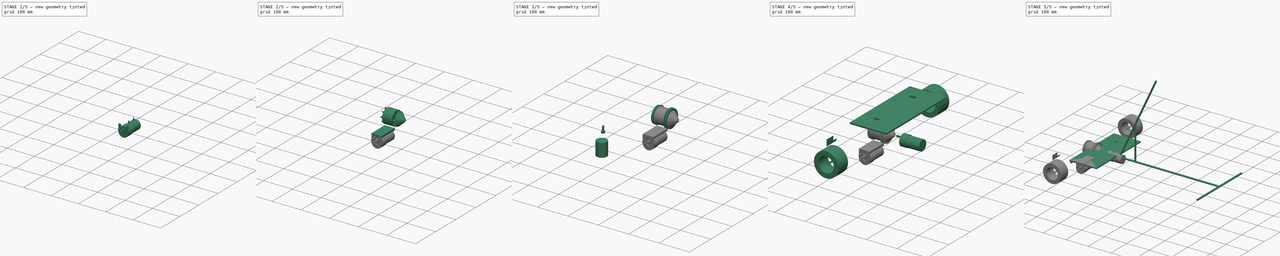
[diagram: build sequence overview — one tinted view per stage of 5, left to right]
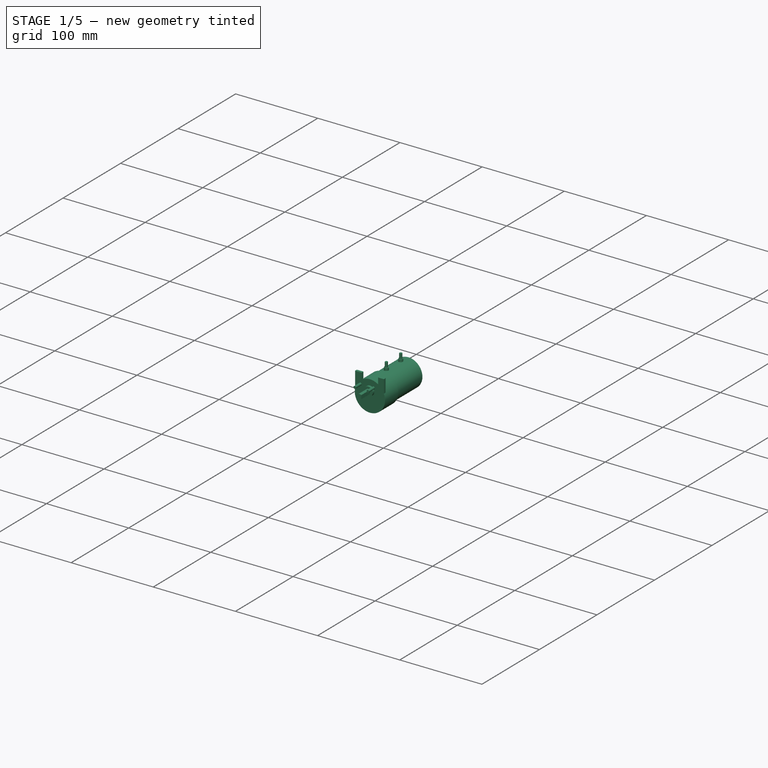
[diagram: stage 1 of 5 — iso view after this stage's code; geometry added in this stage tinted green]
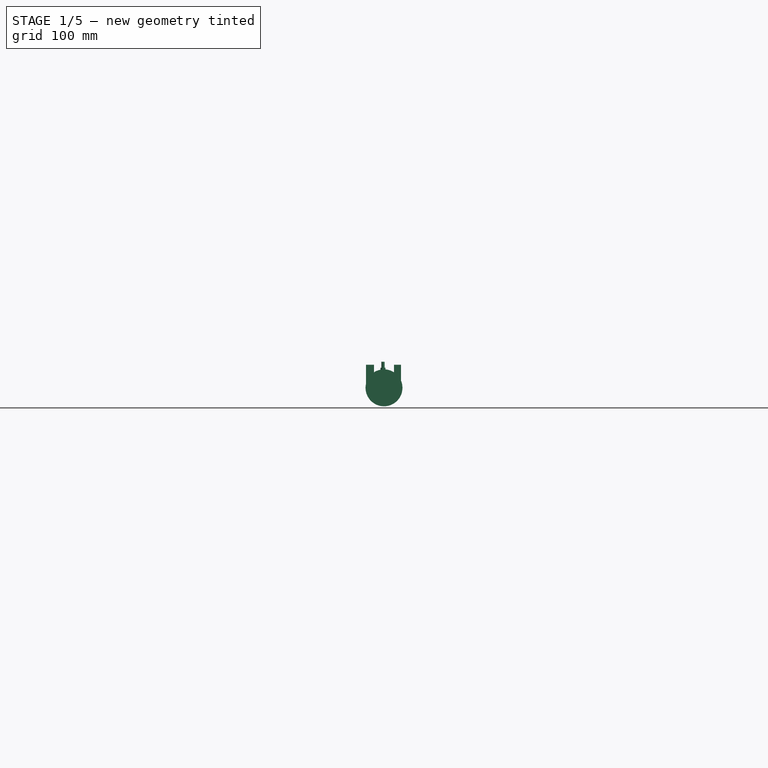
[diagram: stage 1 of 5 — front view after this stage's code; geometry added in this stage tinted green]
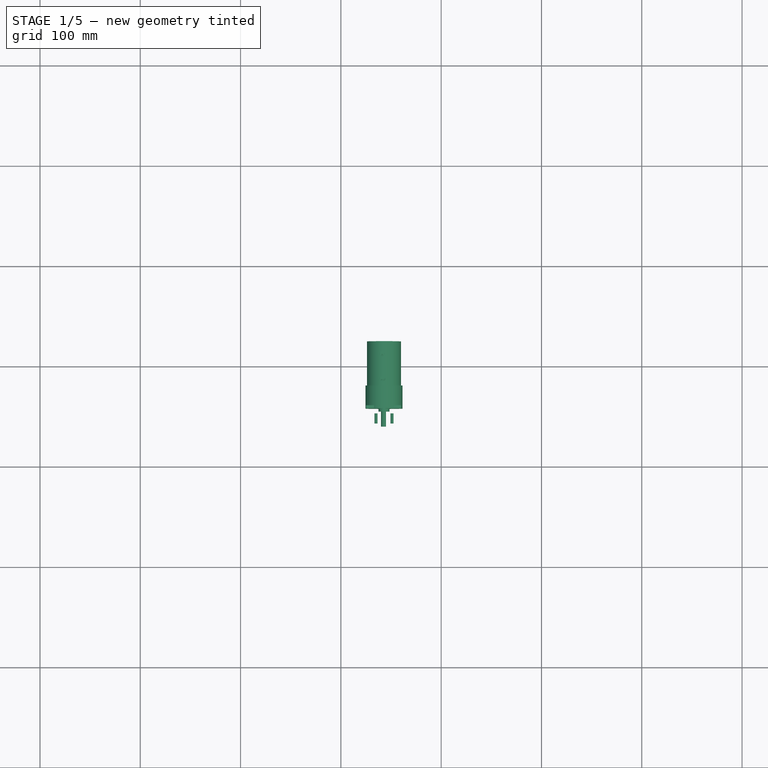
[diagram: stage 1 of 5 — top view after this stage's code; geometry added in this stage tinted green]
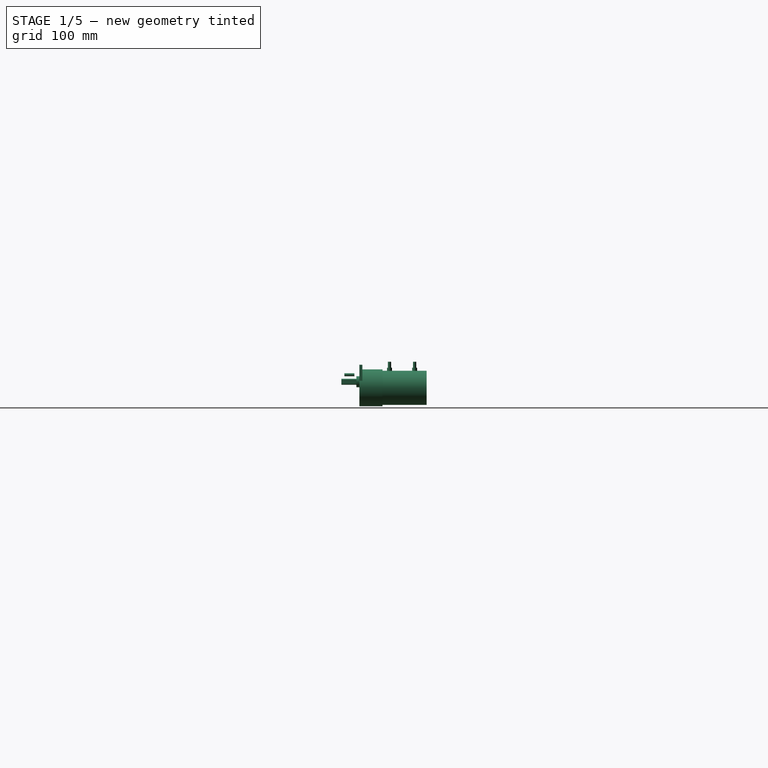
[diagram: stage 1 of 5 — right view after this stage's code; geometry added in this stage tinted green]
FCSTD DOCUMENT  (FreeCAD 0.16R6712 (Git))
Label: Rin-Exo
License: All rights reserved
LicenseURL: http://en.wikipedia.org/wiki/All_rights_reserved
objects: Part::Cylinder×45, Part::Box×16, Part::Cut×16, Part::MultiFuse×11, Sketcher::SketchObject×2, Part::Cone×1
note: 91 computed .brp shape members not serialized (recipe doc carries the construction recipe); baked Part::Feature solids carry a one-line shape summary decoded from their .brp

FEATURE [Part::Cylinder] Cylinder012  label="Caja Reductora001"
  Angle = 360
  Height = 20
  Placement = pos=(0,-298,44) rot=(0,0,1;0rad)
  Radius = 18.4
FEATURE [Part::Cylinder] Cylinder013  label="Motor001"
  Angle = 360
  Height = 30
  Placement = pos=(0,-298,14) rot=(0,0,1;0rad)
  Radius = 17
FEATURE [Part::Cylinder] Cylinder014  label="Encoder001"
  Angle = 360
  Height = 14
  Placement = pos=(0,-298,0) rot=(0,0,1;0rad)
  Radius = 17
FEATURE [Part::Cylinder] Cylinder015  label="Cilindro002"
  Angle = 360
  Height = 6
  Placement = pos=(0,-292,64) rot=(0,0,1;0rad)
  Radius = 5.5
FEATURE [Part::Cylinder] Cylinder016  label="Cilindro003"
  Angle = 360
  Height = 15
  Placement = pos=(0,-186,0) rot=(0,0,1;0rad)
  Radius = 3
FEATURE [Part::Box] Box002  label="Cubo001"
  Height = 21
  Length = 11
  Placement = pos=(2,-191,-2) rot=(0,0,1;0rad)
  Width = 10
FEATURE [Part::Cut] Cut001
  Base = -> Cylinder016
  Placement = pos=(0,-106,70) rot=(0,0,1;0rad)
  Tool = -> Box002
FEATURE [Part::MultiFuse] Fusion002  label="Motor 37Dx68L001 Derecha"
  Placement = pos=(43,-75,283) rot=(1,0,0;1.5708rad)
  Shapes = -> [Cylinder012,Cylinder014,Cylinder015,Cylinder013,Cut001]
FEATURE [Part::Cylinder] Cylinder042  label="Cilindro020"
  Angle = 360
  Height = 3
  Placement = pos=(43,-139,-15) rot=(1,0,0;1.5708rad)
  Radius = 18.4
FEATURE [Part::Cylinder] Cylinder043  label="Cilindro021"
  Angle = 360
  Height = 3
  Placement = pos=(43,-139,-12) rot=(1,0,0;1.5708rad)
  Radius = 8.8
FEATURE [Part::Box] Box015  label="Cubo013"
  Height = 23
  Length = 8
  Placement = pos=(25,-142,-15) rot=(0,0,1;0rad)
  Width = 3
FEATURE [Part::Box] Box016  label="Cubo014"
  Height = 23
  Length = 7
  Placement = pos=(53,-142,-15) rot=(0,0,1;0rad)
  Width = 3
FEATURE [Part::Cylinder] Cylinder044  label="Cilindro022"
  Angle = 360
  Height = 10
  Placement = pos=(42,-112,1) rot=(0,0,1;0rad)
  Radius = 1.6
FEATURE [Part::Cylinder] Cylinder045  label="Cilindro023"
  Angle = 360
  Height = 10
  Placement = pos=(42,-87,1) rot=(0,0,1;0rad)
  Radius = 1.6
FEATURE [Part::Cylinder] Cylinder046  label="Cilindro024"
  Angle = 360
  Height = 10
  Placement = pos=(42,-87,-5) rot=(0,0,1;0rad)
  Radius = 2.5
FEATURE [Part::Cylinder] Cylinder047  label="Cilindro025"
  Angle = 360
  Height = 10
  Placement = pos=(42,-112,-5) rot=(0,0,1;0rad)
  Radius = 2.5
FEATURE [Part::Cylinder] Cylinder048  label="Cilindro026"
  Angle = 360
  Height = 10
  Placement = pos=(35,-147,-2) rot=(1,0,0;1.5708rad)
  Radius = 1.5
FEATURE [Part::Cylinder] Cylinder049  label="Cilindro027"
  Angle = 360
  Height = 10
  Placement = pos=(51,-147,-2) rot=(1,0,0;1.5708rad)
  Radius = 1.5
FEATURE [Sketcher::SketchObject] Sketch001
  Placement = pos=(43,-139,283) rot=(1,0,0;1.5708rad)
  Support = -> Fusion002 [Face2]
FEATURE [Sketcher::SketchObject] Sketch
  Placement = pos=(43,-139,283) rot=(1,0,0;1.5708rad)
  Support = -> Fusion002 [Face2]
  sketch-geometry (5):
    g0: Circle [constr] CenterX=-0.070379 CenterY=-297.992 CenterZ=0 NormalX=0 NormalY=0 NormalZ=1 Radius=18.4
    g1: LineSegment [constr] StartX=-18.4704 StartY=-297.992 StartZ=0 EndX=18.3296 EndY=-297.992 EndZ=0
    g2: LineSegment [constr] StartX=-0.070379 StartY=-297.992 StartZ=0 EndX=-0.070379 EndY=-279.592 EndZ=0
    g3: LineSegment [constr] StartX=-7.89834 StartY=-285.2 StartZ=0 EndX=7.99711 EndY=-285.2 EndZ=0
    g4: LineSegment [constr] StartX=-7.67633 StartY=-284.299 StartZ=0 EndX=7.82367 EndY=-284.299 EndZ=0
  constraints (13):
    c: Radius(g0) = 18.4
    c: PointOnObject(g1,g0)
    c: PointOnObject(g1,g0)
    c: Horizontal(g1)
    c: Coincident(g2,g0)
    c: PointOnObject(g2,g0)
    c: Symmetric(g1,g1,g2)
    c: DistanceY(g0,g-1) = 297.992
    c: PointOnObject(g0,g1)
    c: DistanceX(g0,g-1) = 0.070379
    c: Horizontal(g3)
    c: Horizontal(g4)
    c: DistanceX(g4,g4) = 15.5
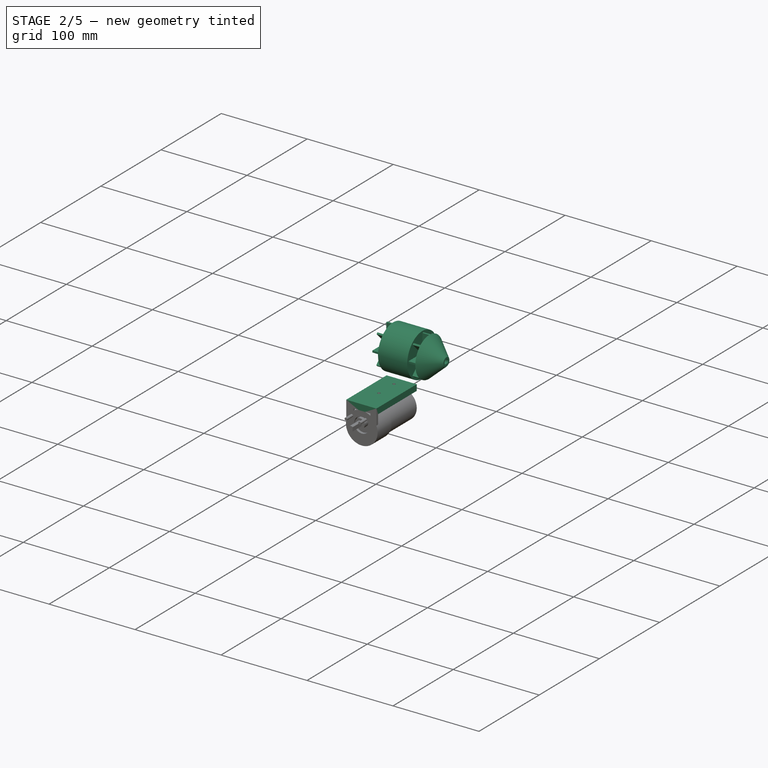
[diagram: stage 2 of 5 — iso view after this stage's code; geometry added in this stage tinted green]
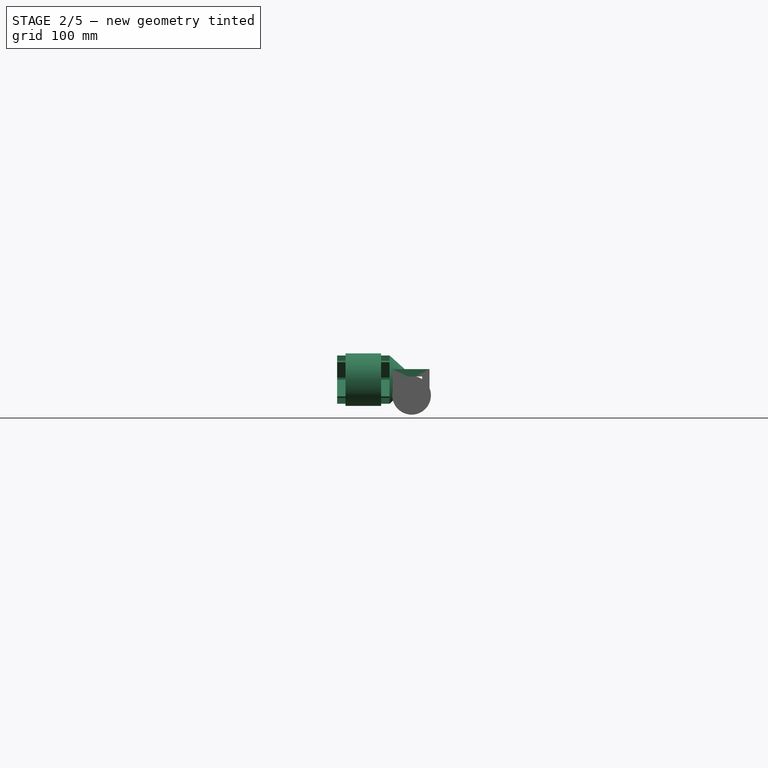
[diagram: stage 2 of 5 — front view after this stage's code; geometry added in this stage tinted green]
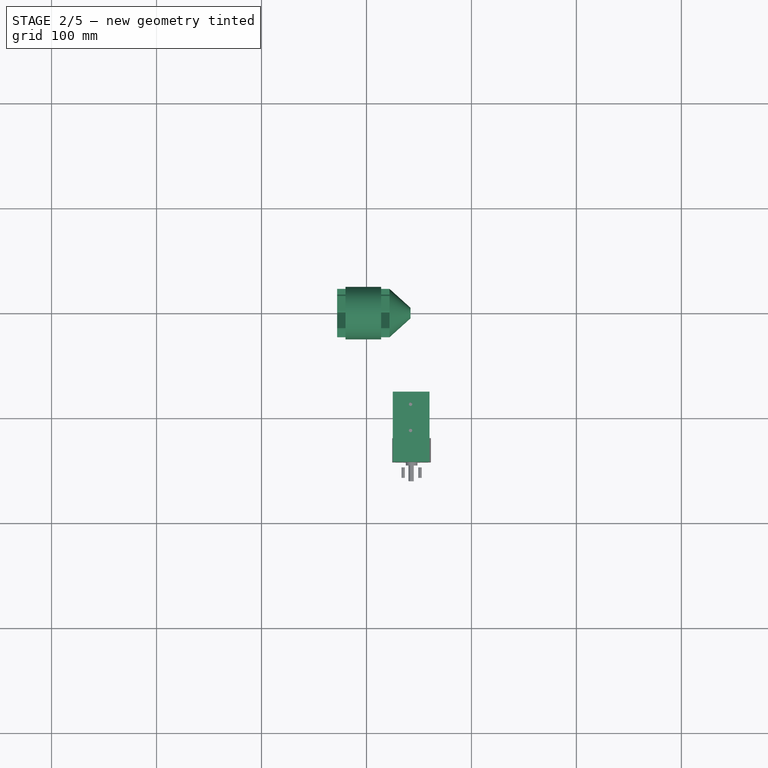
[diagram: stage 2 of 5 — top view after this stage's code; geometry added in this stage tinted green]
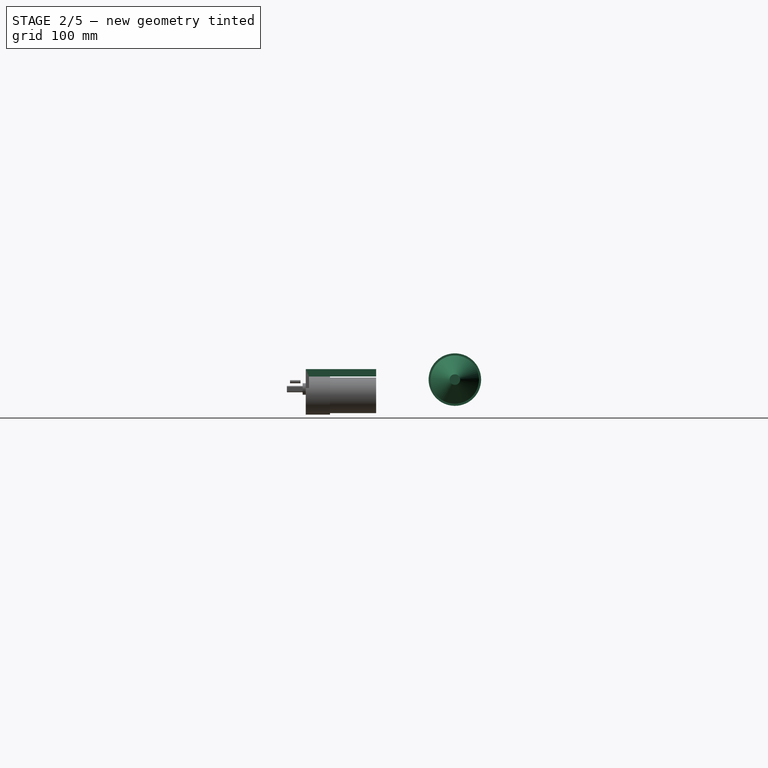
[diagram: stage 2 of 5 — right view after this stage's code; geometry added in this stage tinted green]
FEATURE [Part::Cylinder] Cylinder039  label="Centro"
  Angle = 360
  Height = 34
  Placement = pos=(-20,0,0) rot=(0,1,0;1.5708rad)
  Radius = 25
FEATURE [Part::Cone] Cone  label="Cono"
  Angle = 360
  Height = 20
  Placement = pos=(100,0,0) rot=(0,-1,0;1.5708rad)
  Radius1 = 5
  Radius2 = 23
FEATURE [Part::Cylinder] Cylinder041  label="Cilindro019"
  Angle = 360
  Height = 15
  Placement = pos=(0,-186,0) rot=(0,0,1;0rad)
  Radius = 3
FEATURE [Part::Box] Box009  label="Cubo007"
  Height = 21
  Length = 11
  Placement = pos=(2,-191,-2) rot=(0,0,1;0rad)
  Width = 10
FEATURE [Part::Cut] Cut009
  Base = -> Cylinder041
  Placement = pos=(86,186,0) rot=(0,1,0;1.5708rad)
  Tool = -> Box009
FEATURE [Part::Cut] Cut010  label="Cono Rin"
  Base = -> Cone
  Placement = pos=(-58,0,0) rot=(0,0,1;0rad)
  Tool = -> Cut009
FEATURE [Part::Box] Box010  label="Cubo008"
  Height = 46
  Length = 50
  Placement = pos=(-28,0,-23) rot=(0,0,1;0rad)
  Width = 2
FEATURE [Part::Box] Box011  label="Cubo009"
  Height = 46
  Length = 50
  Placement = pos=(-28,23,0) rot=(1,0,0;1.5708rad)
  Width = 2
FEATURE [Part::Box] Box012  label="Cubo010"
  Height = 46
  Length = 50
  Placement = pos=(-28,16.5,-16) rot=(1,0,0;0.785398rad)
  Width = 2
FEATURE [Part::Box] Box013  label="Cubo011"
  Height = 46
  Length = 50
  Placement = pos=(-28,-16.5,-16) rot=(-1,0,0;0.785398rad)
  Width = 2
FEATURE [Part::MultiFuse] Fusion010  label="Soporte interno"
  Shapes = -> [Box010,Box012,Box013,Box011]
FEATURE [Part::Box] Box014  label="Cubo012"
  Height = 7
  Length = 35
  Placement = pos=(25,-142,3) rot=(0,0,1;0rad)
  Width = 67
FEATURE [Part::Cut] Cut011
  Base = -> Cylinder042
  Tool = -> Cylinder043
FEATURE [Part::MultiFuse] Fusion011
  Shapes = -> [Box014,Cut011,Box015,Box016]
FEATURE [Part::Cut] Cut012
  Base = -> Fusion011
  Tool = -> Cylinder044
FEATURE [Part::Cut] Cut013
  Base = -> Cut012
  Tool = -> Cylinder045
FEATURE [Part::Cut] Cut014
  Base = -> Cut013
  Tool = -> Cylinder046
FEATURE [Part::Cut] Cut015  label="Soporte motor"
  Base = -> Cut014
  Tool = -> Cylinder047
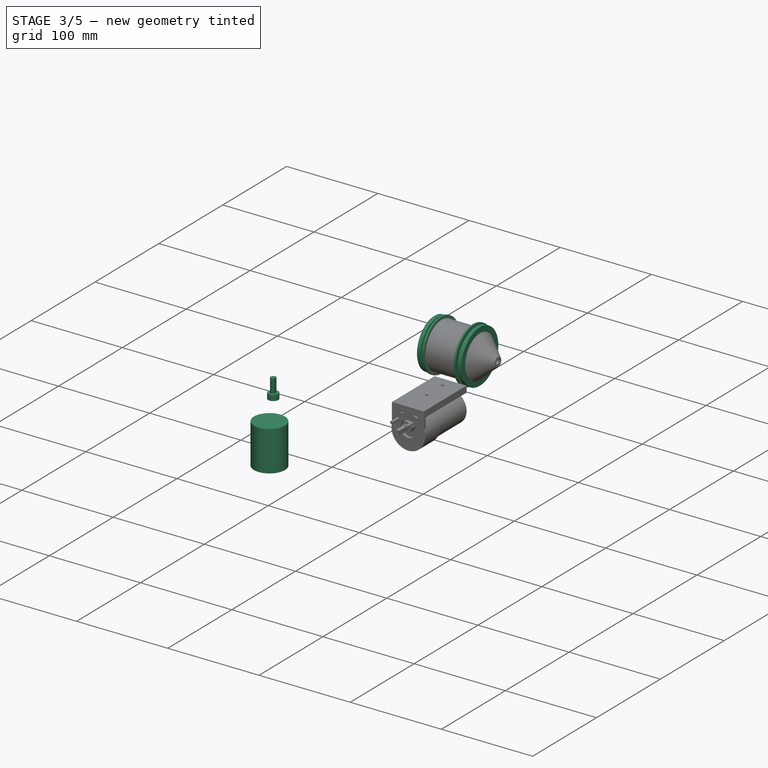
[diagram: stage 3 of 5 — iso view after this stage's code; geometry added in this stage tinted green]
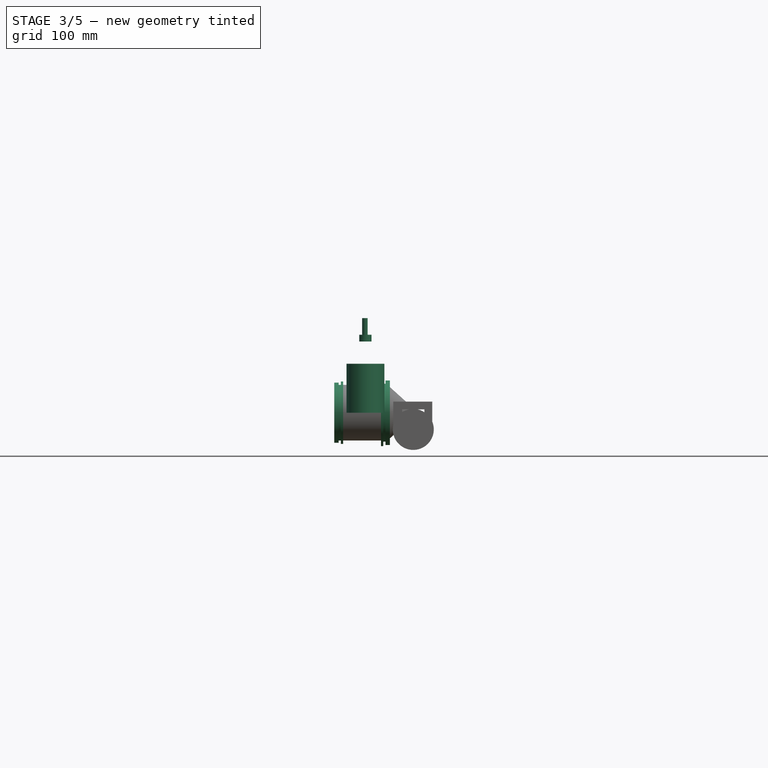
[diagram: stage 3 of 5 — front view after this stage's code; geometry added in this stage tinted green]
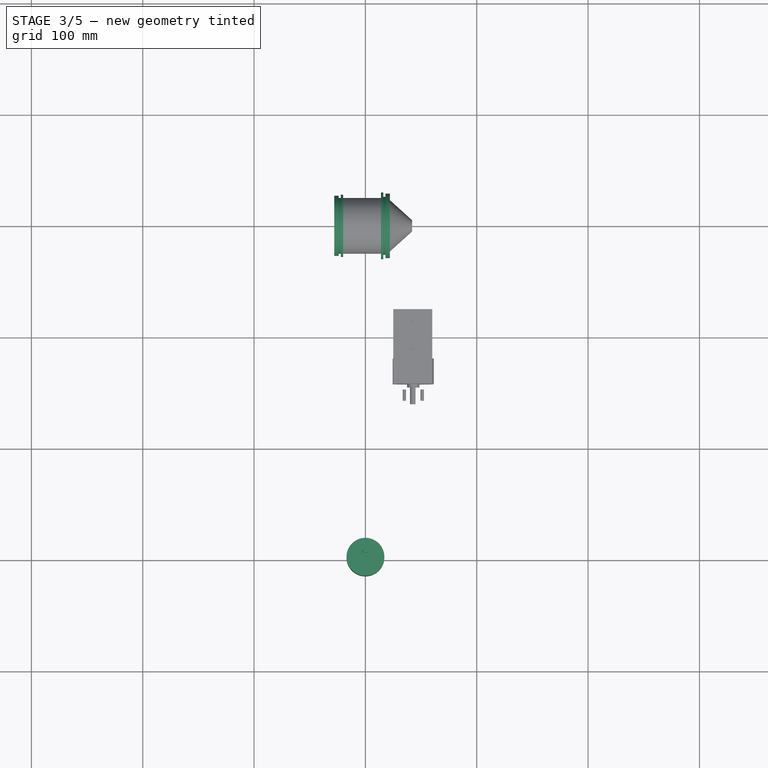
[diagram: stage 3 of 5 — top view after this stage's code; geometry added in this stage tinted green]
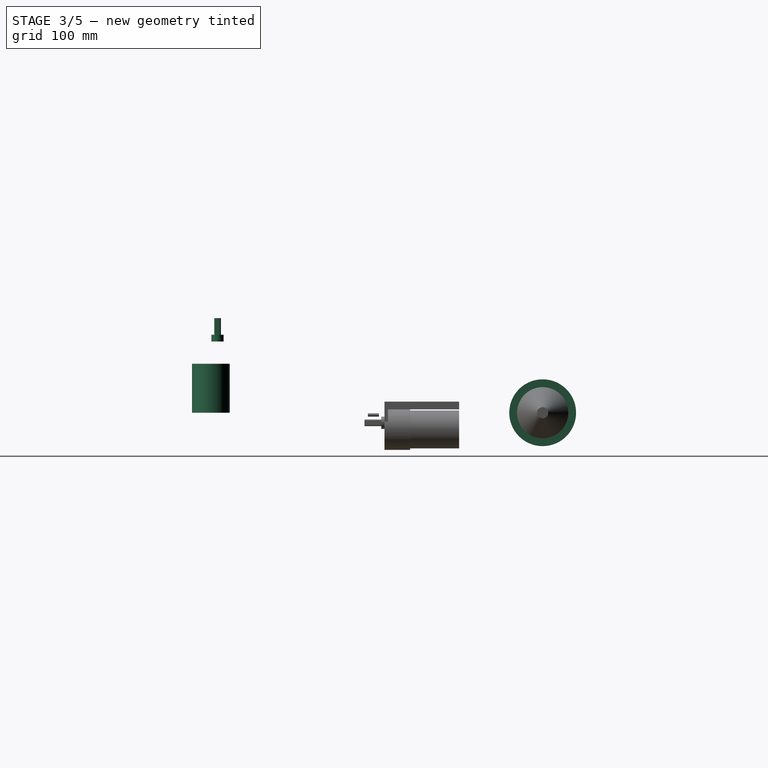
[diagram: stage 3 of 5 — right view after this stage's code; geometry added in this stage tinted green]
FEATURE [Part::Cylinder] Cylinder029  label="Motor003"
  Angle = 360
  Height = 30
  Placement = pos=(0,-298,14) rot=(0,0,1;0rad)
  Radius = 17
FEATURE [Part::Cylinder] Cylinder030  label="Encoder003"
  Angle = 360
  Height = 14
  Placement = pos=(0,-298,0) rot=(0,0,1;0rad)
  Radius = 17
FEATURE [Part::Cylinder] Cylinder031  label="Cilindro011"
  Angle = 360
  Height = 6
  Placement = pos=(0,-292,64) rot=(0,0,1;0rad)
  Radius = 5.5
FEATURE [Part::Cylinder] Cylinder032  label="Cilindro012"
  Angle = 360
  Height = 15
  Placement = pos=(0,-186,0) rot=(0,0,1;0rad)
  Radius = 3
FEATURE [Part::Box] Box008  label="Cubo006"
  Height = 21
  Length = 11
  Placement = pos=(2,-191,-2) rot=(0,0,1;0rad)
  Width = 10
FEATURE [Part::Cut] Cut007
  Base = -> Cylinder032
  Placement = pos=(0,-106,70) rot=(0,0,1;0rad)
  Tool = -> Box008
FEATURE [Part::Cylinder] Cylinder033  label="Cilindro013"
  Angle = 360
  Height = 4
  Placement = pos=(0,0,0) rot=(0,1,0;1.5708rad)
  Radius = 29
FEATURE [Part::Cylinder] Cylinder034  label="Cilindro014"
  Angle = 360
  Height = 2
  Placement = pos=(-2,0,0) rot=(0,1,0;1.5708rad)
  Radius = 26
FEATURE [Part::Cylinder] Cylinder035  label="Cilindro015"
  Angle = 360
  Height = 2
  Placement = pos=(-4,0,0) rot=(0,1,0;1.5708rad)
  Radius = 30
FEATURE [Part::MultiFuse] Fusion007  label="Riel Derecho"
  Placement = pos=(18,0,0) rot=(0,0,1;0rad)
  Shapes = -> [Cylinder033,Cylinder035,Cylinder034]
FEATURE [Part::Cylinder] Cylinder036  label="Cilindro016"
  Angle = 360
  Height = 4
  Placement = pos=(0,0,0) rot=(0,1,0;1.5708rad)
  Radius = 27
FEATURE [Part::Cylinder] Cylinder037  label="Cilindro017"
  Angle = 360
  Height = 2
  Placement = pos=(-2,0,0) rot=(0,1,0;1.5708rad)
  Radius = 25
FEATURE [Part::Cylinder] Cylinder038  label="Cilindro018"
  Angle = 360
  Height = 2
  Placement = pos=(-4,0,0) rot=(0,1,0;1.5708rad)
  Radius = 28
FEATURE [Part::MultiFuse] Fusion008  label="Riel Izquierdo"
  Placement = pos=(-24,0,0) rot=(0,1,0;3.14159rad)
  Shapes = -> [Cylinder036,Cylinder038,Cylinder037]
FEATURE [Part::Cylinder] Cylinder040  label="Corte"
  Angle = 360
  Height = 50
  Placement = pos=(-28,0,0) rot=(0,1,0;1.5708rad)
  Radius = 23
FEATURE [Part::MultiFuse] Fusion009  label="Rin Solido"
  Shapes = -> [Fusion007,Cylinder039,Fusion008]
FEATURE [Part::Cut] Cut008  label="Rin"
  Base = -> Fusion009
  Tool = -> Cylinder040
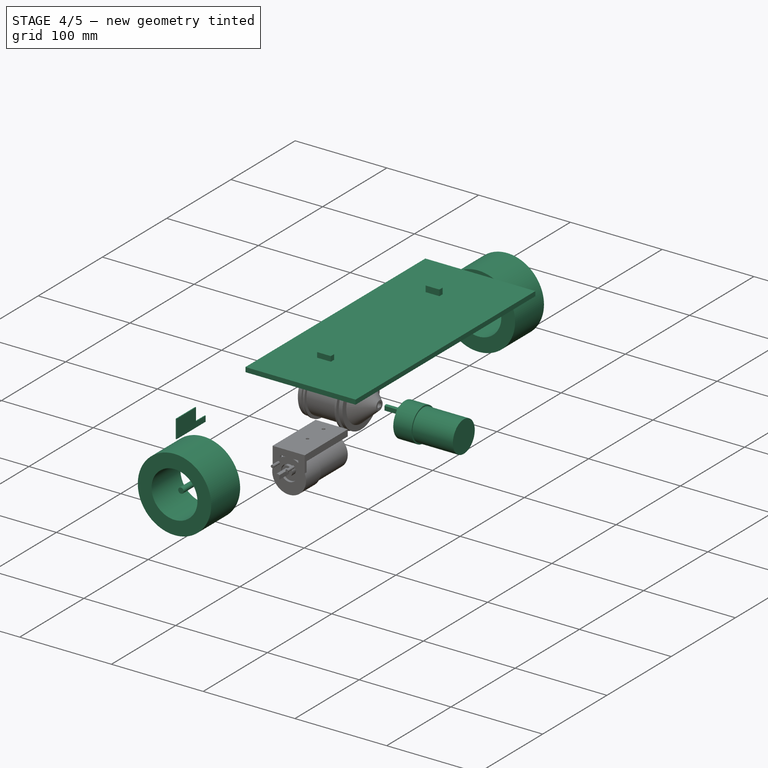
[diagram: stage 4 of 5 — iso view after this stage's code; geometry added in this stage tinted green]
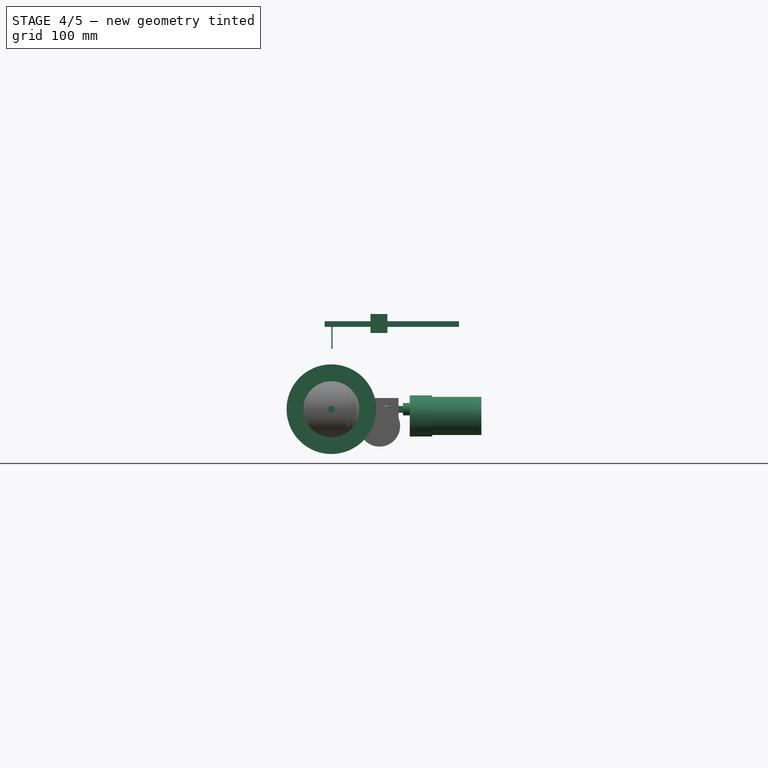
[diagram: stage 4 of 5 — front view after this stage's code; geometry added in this stage tinted green]
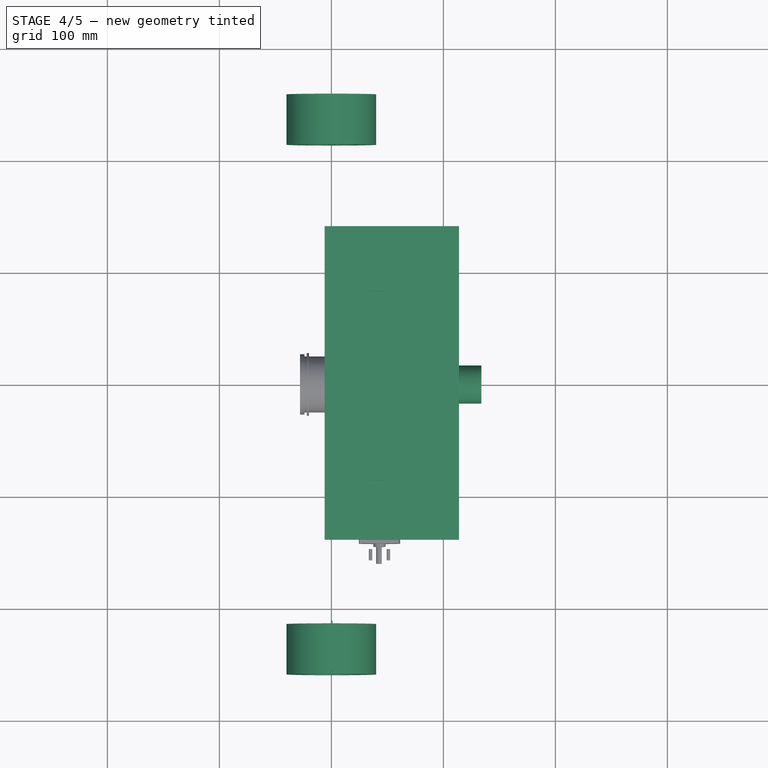
[diagram: stage 4 of 5 — top view after this stage's code; geometry added in this stage tinted green]
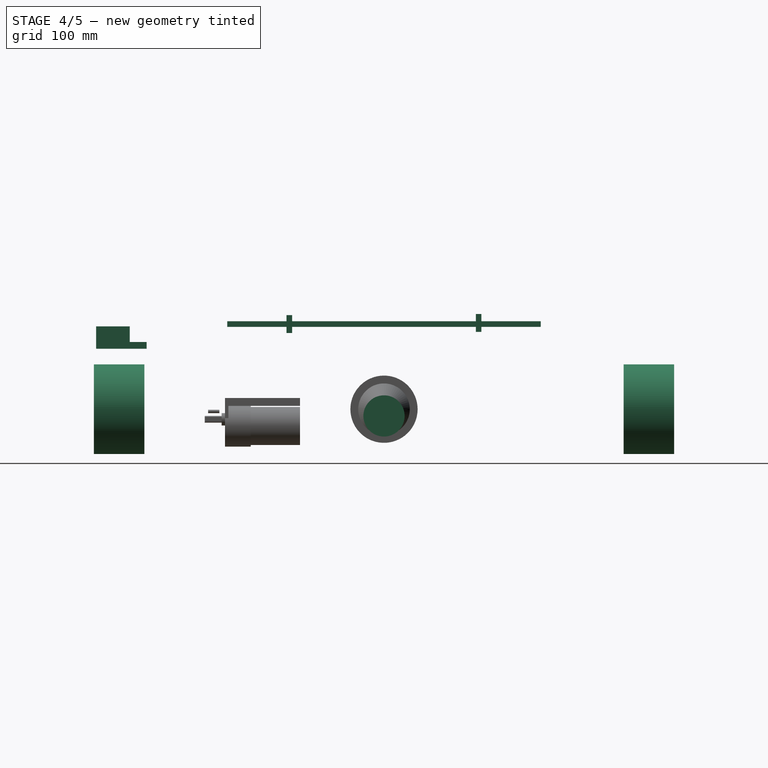
[diagram: stage 4 of 5 — right view after this stage's code; geometry added in this stage tinted green]
FEATURE [Part::Box] Box  label="Tabla"
  Height = 5
  Length = 120
  Placement = pos=(-6,-140,73.5) rot=(0,0,1;0rad)
  Width = 280
FEATURE [Part::Box] Box004  label="Cubo003"
  Height = 16
  Length = 15
  Placement = pos=(35,-87,68) rot=(0,0,1;0rad)
  Width = 5
FEATURE [Part::Box] Box005  label="Cubo004"
  Height = 16
  Length = 15
  Placement = pos=(35,82,69) rot=(0,0,1;0rad)
  Width = 5
FEATURE [Part::Cylinder] Cylinder022  label="Cilindro"
  Angle = 360
  Height = 45
  Placement = pos=(0,-214,0) rot=(1,0,0;1.5708rad)
  Radius = 40
FEATURE [Part::Cylinder] Cylinder023  label="Cilindro006"
  Angle = 360
  Height = 60
  Placement = pos=(0,-207,0) rot=(1,0,0;1.5708rad)
  Radius = 25
FEATURE [Part::Cut] Cut
  Base = -> Cylinder022
  Tool = -> Cylinder023
FEATURE [Part::Cylinder] Cylinder024  label="Cilindro007"
  Angle = 360
  Height = 35
  Placement = pos=(0,-214,0) rot=(1,0,0;1.5708rad)
  Radius = 3
FEATURE [Part::MultiFuse] Fusion004  label="Rueda Derecha"
  Shapes = -> [Cut,Cylinder024]
FEATURE [Part::Cylinder] Cylinder025  label="Cilindro008"
  Angle = 360
  Height = 45
  Placement = pos=(0,-214,0) rot=(1,0,0;1.5708rad)
  Radius = 40
FEATURE [Part::Cylinder] Cylinder026  label="Cilindro009"
  Angle = 360
  Height = 60
  Placement = pos=(0,-207,0) rot=(1,0,0;1.5708rad)
  Radius = 25
FEATURE [Part::Cut] Cut005
  Base = -> Cylinder025
  Tool = -> Cylinder026
FEATURE [Part::Cylinder] Cylinder027  label="Cilindro010"
  Angle = 360
  Height = 35
  Placement = pos=(0,-214,0) rot=(1,0,0;1.5708rad)
  Radius = 3
FEATURE [Part::MultiFuse] Fusion005  label="Rueda Izquierda"
  Placement = pos=(0,0,0) rot=(0,0,1;3.14159rad)
  Shapes = -> [Cut005,Cylinder027]
FEATURE [Part::Box] Box006  label="Cubo"
  Height = 20
  Length = 1
  Placement = pos=(0,-257,54) rot=(0,0,1;0rad)
  Width = 45
FEATURE [Part::Box] Box007  label="Cubo005"
  Height = 14
  Length = 10
  Placement = pos=(-4,-227,60) rot=(0,0,1;0rad)
  Width = 15
FEATURE [Part::Cut] Cut006
  Base = -> Box006
  Tool = -> Box007
FEATURE [Part::Cylinder] Cylinder028  label="Caja Reductora003"
  Angle = 360
  Height = 20
  Placement = pos=(0,-298,44) rot=(0,0,1;0rad)
  Radius = 18.4
FEATURE [Part::MultiFuse] Fusion006  label="Motor 37Dx68L001 Derecha001"
  Placement = pos=(134,0,292) rot=(0.57735,-0.57735,-0.57735;2.0944rad)
  Shapes = -> [Cylinder028,Cylinder030,Cylinder031,Cylinder029,Cut007]
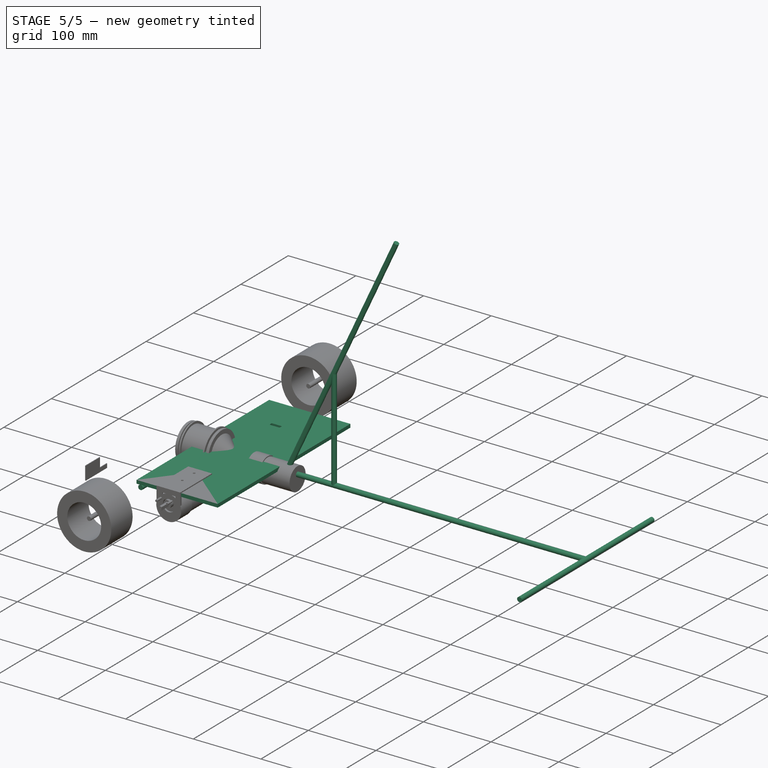
[diagram: stage 5 of 5 — iso view after this stage's code; geometry added in this stage tinted green]
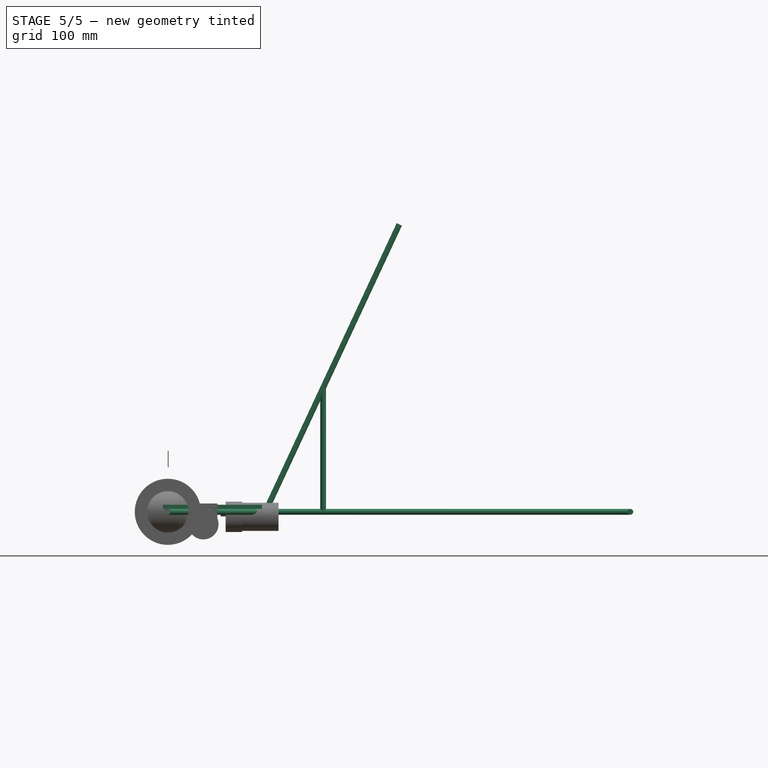
[diagram: stage 5 of 5 — front view after this stage's code; geometry added in this stage tinted green]
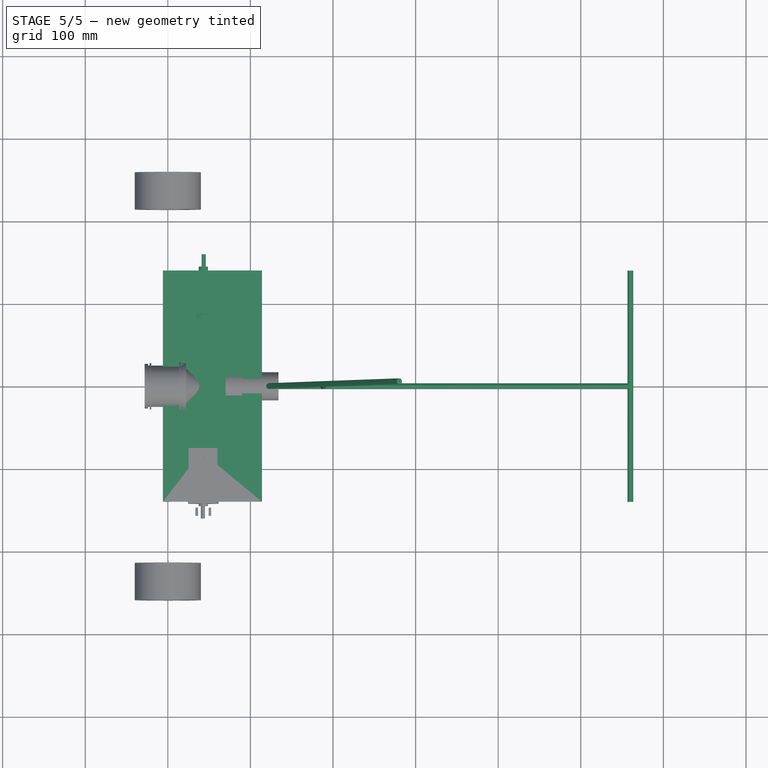
[diagram: stage 5 of 5 — top view after this stage's code; geometry added in this stage tinted green]
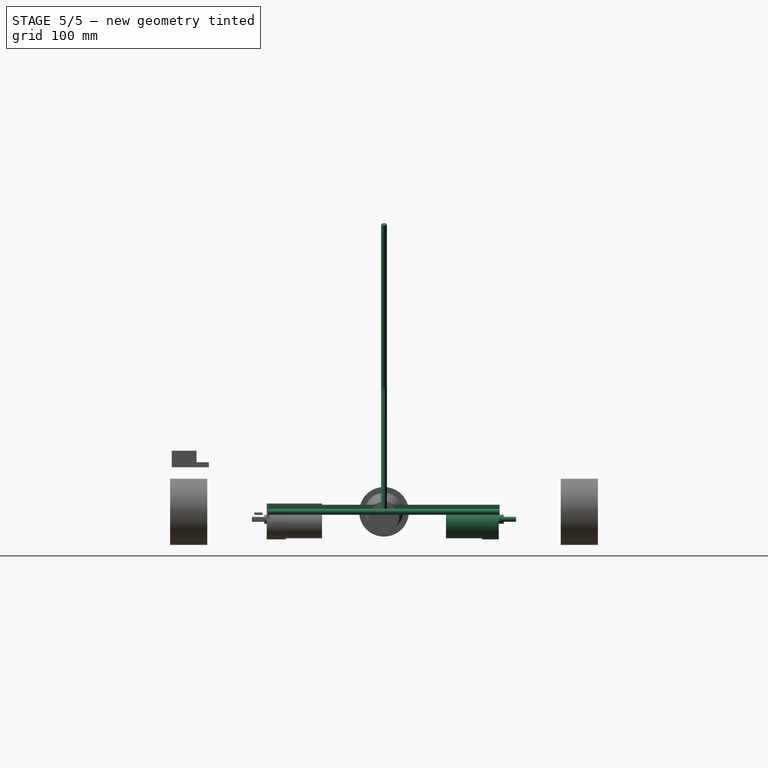
[diagram: stage 5 of 5 — right view after this stage's code; geometry added in this stage tinted green]
FEATURE [Part::Cylinder] Cylinder  label="Eje Central"
  Angle = 360
  Height = 560
  Placement = pos=(0,0,0) rot=(0,1,0;1.5708rad)
  Radius = 3.5
FEATURE [Part::Cylinder] Cylinder001  label="Eje Ruedas traseras"
  Angle = 360
  Height = 280
  Placement = pos=(0,140,0) rot=(1,0,0;1.5708rad)
  Radius = 3.5
FEATURE [Part::Cylinder] Cylinder002  label="Eje Ruedas delanteras"
  Angle = 360
  Height = 280
  Placement = pos=(560,140,0) rot=(1,0,0;1.5708rad)
  Radius = 3.5
FEATURE [Part::Cylinder] Cylinder003  label="Soporte Derecho"
  Angle = 360
  Height = 150
  Placement = pos=(0,-90,0) rot=(-0.295242,0.908661,0.295242;1.66643rad)
  Radius = 3.5
FEATURE [Part::Cylinder] Cylinder004  label="Soporte Izquierdo"
  Angle = 360
  Height = 150
  Placement = pos=(0,90,0) rot=(0.295242,0.908661,-0.295242;1.66643rad)
  Radius = 3.5
FEATURE [Part::Cylinder] Cylinder005  label="Soporte Mastil"
  Angle = 360
  Height = 150
  Placement = pos=(188,0,0) rot=(0,0,1;0rad)
  Radius = 3.5
FEATURE [Part::Cylinder] Cylinder006  label="Mastil"
  Angle = 360
  Height = 384
  Placement = pos=(118,0,0) rot=(0,1,0;0.436332rad)
  Radius = 3.5
FEATURE [Part::MultiFuse] Fusion  label="Estructura Exo"
  Shapes = -> [Cylinder,Cylinder001,Cylinder003,Cylinder002,Cylinder004,Cylinder005,Cylinder006]
FEATURE [Part::Cylinder] Cylinder017  label="Caja Reductora002"
  Angle = 360
  Height = 20
  Placement = pos=(0,-298,44) rot=(0,0,1;0rad)
  Radius = 18.4
FEATURE [Part::Cylinder] Cylinder018  label="Motor002"
  Angle = 360
  Height = 30
  Placement = pos=(0,-298,14) rot=(0,0,1;0rad)
  Radius = 17
FEATURE [Part::Cylinder] Cylinder019  label="Encoder002"
  Angle = 360
  Height = 14
  Placement = pos=(0,-298,0) rot=(0,0,1;0rad)
  Radius = 17
FEATURE [Part::Cylinder] Cylinder020  label="Cilindro004"
  Angle = 360
  Height = 6
  Placement = pos=(0,-292,64) rot=(0,0,1;0rad)
  Radius = 5.5
FEATURE [Part::Cylinder] Cylinder021  label="Cilindro005"
  Angle = 360
  Height = 15
  Placement = pos=(0,-186,0) rot=(0,0,1;0rad)
  Radius = 3
FEATURE [Part::Box] Box003  label="Cubo002"
  Height = 21
  Length = 11
  Placement = pos=(2,-191,-2) rot=(0,0,1;0rad)
  Width = 10
FEATURE [Part::Cut] Cut002
  Base = -> Cylinder021
  Placement = pos=(0,-106,70) rot=(0,0,1;0rad)
  Tool = -> Box003
FEATURE [Part::MultiFuse] Fusion003  label="Motor 37Dx68L001 Izquierda001"
  Placement = pos=(43,75,283) rot=(0,0.707107,0.707107;3.14159rad)
  Shapes = -> [Cylinder017,Cylinder019,Cylinder020,Cylinder018,Cut002]
FEATURE [Part::Cut] Cut003
  Base = -> Box
  Tool = -> Box004
FEATURE [Part::Cut] Cut004  label="Tabla Cortes"
  Base = -> Cut003
  Placement = pos=(0,0,-70) rot=(0,0,1;0rad)
  Tool = -> Box005
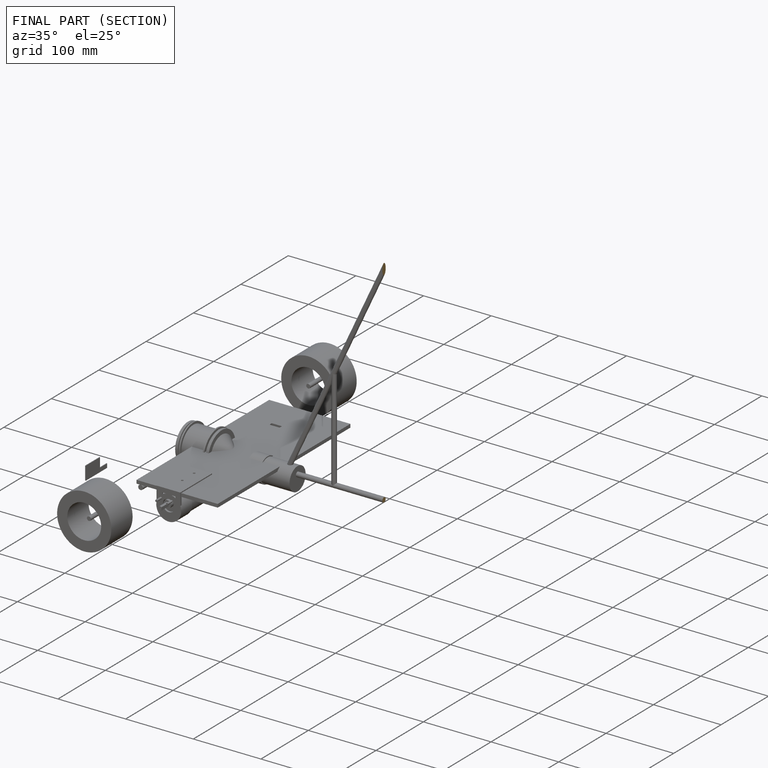
[diagram: finished part — half-section view (interior)]
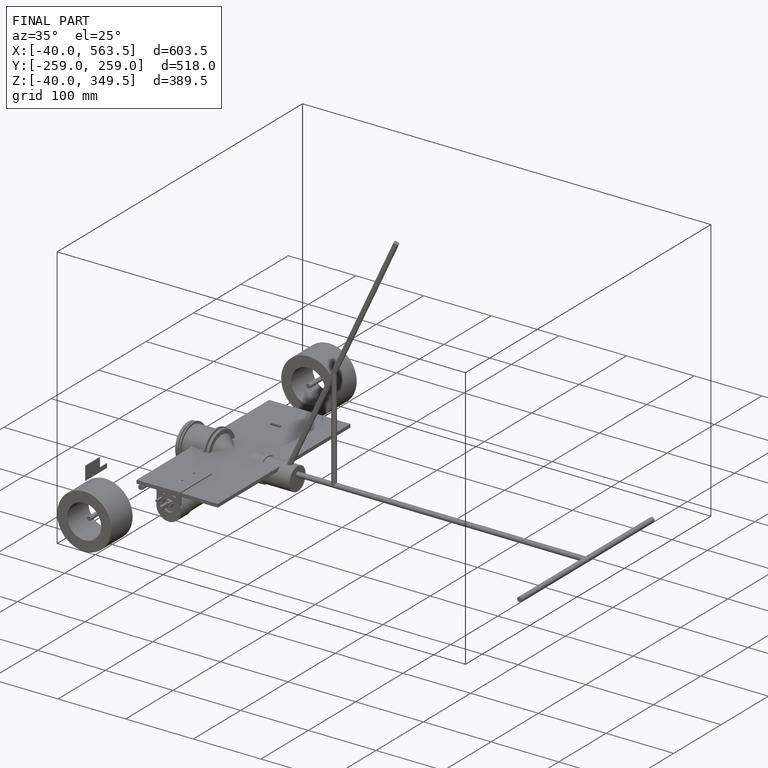
[diagram: finished part — iso view with bounding-box wireframe]
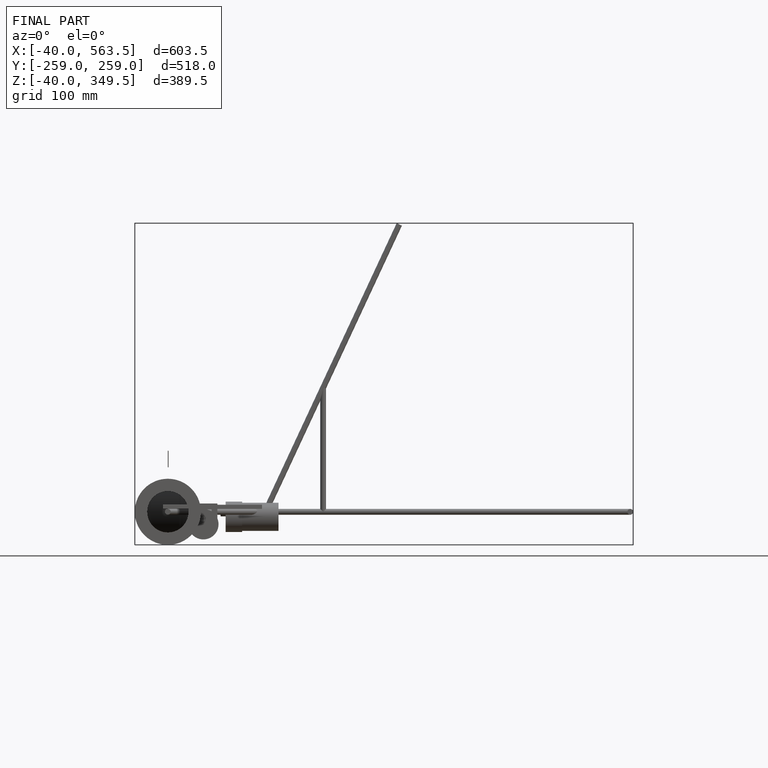
[diagram: finished part — front view with bounding-box wireframe]
